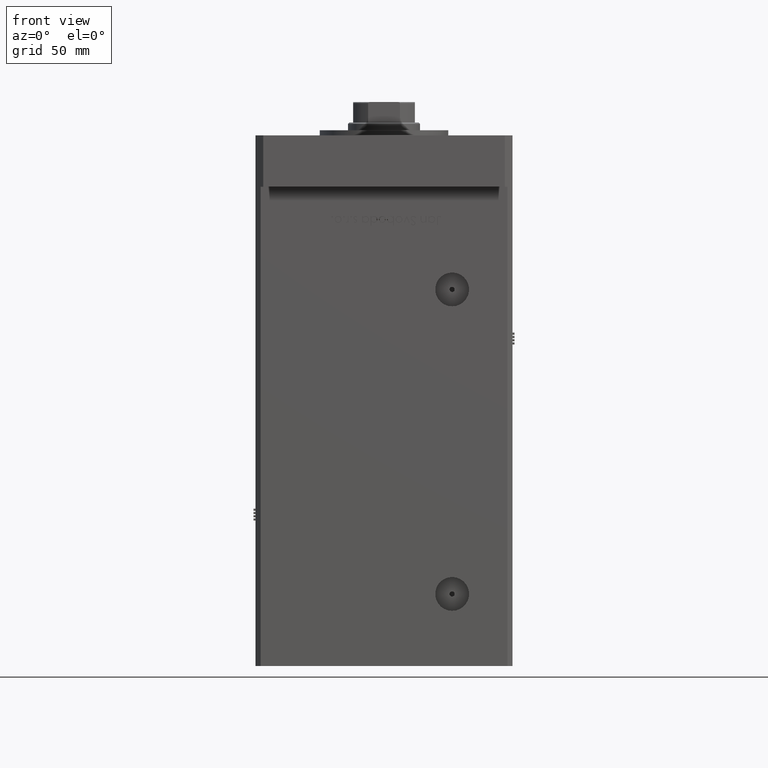
[diagram: clean part render]
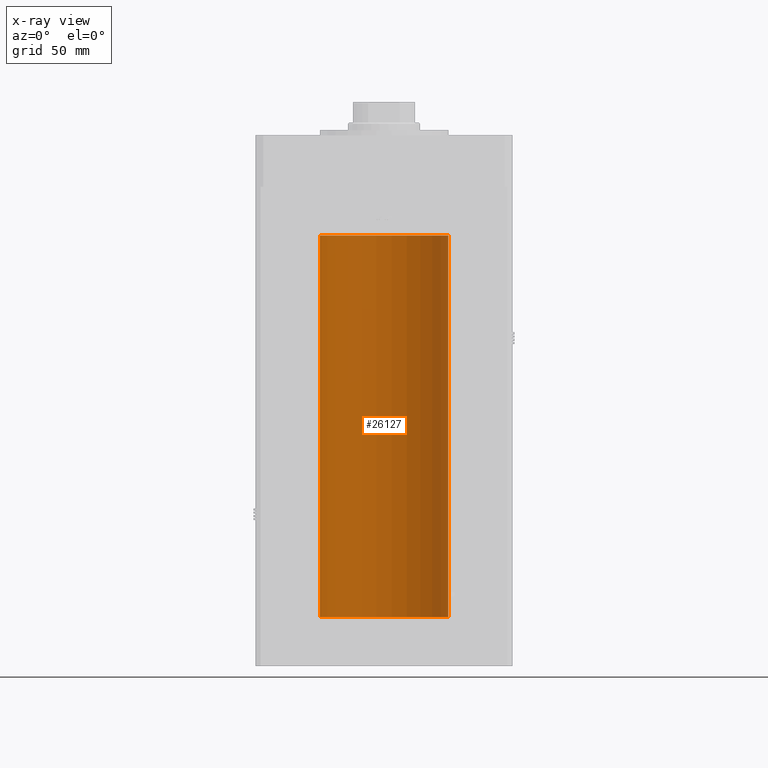
[diagram: x-ray — body ghosted, one internal face saturated and labeled with its STEP entity id]
A machine part, front view, then the same camera in x-ray: the body is ghosted and one INTERNAL B-rep face — a face not visible from any outside direction — is saturated and labeled: STEP entity #26127.
In plain terms, the highlighted cylindrical surface (partial cylindrical patch) has radius 25 mm, axis along (-0, -0, -1).
Its self-contained STEP definition (entity closure, byte-faithful):
#1627 = ORIENTED_EDGE ( 'NONE', *, *, #2624, .F. ) ;
#1793 = VECTOR ( 'NONE', #13716, 1000.000000000000000 ) ;
#2624 = EDGE_CURVE ( 'NONE', #6368, #3824, #47724, .T. ) ;
#3824 = VERTEX_POINT ( 'NONE', #8505 ) ;
#5655 = ORIENTED_EDGE ( 'NONE', *, *, #21397, .F. ) ;
#6368 = VERTEX_POINT ( 'NONE', #10781 ) ;
#7253 = DIRECTION ( 'NONE',  ( -0.000000000000000000, 0.000000000000000000, 1.000000000000000000 ) ) ;
#8505 = CARTESIAN_POINT ( 'NONE',  ( 25.00000000000000000, 3.061616997868383043E-15, 0.000000000000000000 ) ) ;
#9673 = CARTESIAN_POINT ( 'NONE',  ( -25.00000000000000000, 0.000000000000000000, 148.5000000000000000 ) ) ;
#10781 = CARTESIAN_POINT ( 'NONE',  ( 25.00000000000000000, 3.061616997868383043E-15, 148.5000000000000000 ) ) ;
#11577 = CARTESIAN_POINT ( 'NONE',  ( 0.000000000000000000, 0.000000000000000000, 148.5000000000000000 ) ) ;
#11856 = DIRECTION ( 'NONE',  ( -1.000000000000000000, 0.000000000000000000, 0.000000000000000000 ) ) ;
#12801 = AXIS2_PLACEMENT_3D ( 'NONE', #16101, #55269, #50681 ) ;
#13716 = DIRECTION ( 'NONE',  ( -0.000000000000000000, -0.000000000000000000, -1.000000000000000000 ) ) ;
#14283 = VERTEX_POINT ( 'NONE', #27600 ) ;
#15631 = DIRECTION ( 'NONE',  ( -0.000000000000000000, -0.000000000000000000, -1.000000000000000000 ) ) ;
#16101 = CARTESIAN_POINT ( 'NONE',  ( 0.000000000000000000, 0.000000000000000000, 0.000000000000000000 ) ) ;
#18623 = LINE ( 'NONE', #9673, #1793 ) ;
#20586 = CARTESIAN_POINT ( 'NONE',  ( -25.00000000000000000, 0.000000000000000000, 0.000000000000000000 ) ) ;
#21317 = EDGE_LOOP ( 'NONE', ( #1627, #44684, #32552, #5655 ) ) ;
#21397 = EDGE_CURVE ( 'NONE', #3824, #46928, #37615, .T. ) ;
#21992 = EDGE_CURVE ( 'NONE', #14283, #46928, #18623, .T. ) ;
#26127 = ADVANCED_FACE ( 'NONE', ( #29715 ), #51044, .F. ) ;
#27600 = CARTESIAN_POINT ( 'NONE',  ( -25.00000000000000000, 0.000000000000000000, 148.5000000000000000 ) ) ;
#29715 = FACE_OUTER_BOUND ( 'NONE', #21317, .T. ) ;
#32552 = ORIENTED_EDGE ( 'NONE', *, *, #21992, .T. ) ;
#34480 = CARTESIAN_POINT ( 'NONE',  ( 25.00000000000000000, 3.061616997868383043E-15, 148.5000000000000000 ) ) ;
#37615 = CIRCLE ( 'NONE', #12801, 25.00000000000000000 ) ;
#37736 = VECTOR ( 'NONE', #43981, 1000.000000000000000 ) ;
#43981 = DIRECTION ( 'NONE',  ( -0.000000000000000000, -0.000000000000000000, -1.000000000000000000 ) ) ;
#44684 = ORIENTED_EDGE ( 'NONE', *, *, #47252, .T. ) ;
#45082 = AXIS2_PLACEMENT_3D ( 'NONE', #11577, #15631, #11856 ) ;
#45184 = AXIS2_PLACEMENT_3D ( 'NONE', #50496, #7253, #46718 ) ;
#46718 = DIRECTION ( 'NONE',  ( 1.000000000000000000, 0.000000000000000000, 0.000000000000000000 ) ) ;
#46928 = VERTEX_POINT ( 'NONE', #20586 ) ;
#47252 = EDGE_CURVE ( 'NONE', #6368, #14283, #53522, .T. ) ;
#47724 = LINE ( 'NONE', #34480, #37736 ) ;
#50496 = CARTESIAN_POINT ( 'NONE',  ( 0.000000000000000000, 0.000000000000000000, 148.5000000000000000 ) ) ;
#50681 = DIRECTION ( 'NONE',  ( 1.000000000000000000, 0.000000000000000000, 0.000000000000000000 ) ) ;
#51044 = CYLINDRICAL_SURFACE ( 'NONE', #45082, 25.00000000000000000 ) ;
#53522 = CIRCLE ( 'NONE', #45184, 25.00000000000000000 ) ;
#55269 = DIRECTION ( 'NONE',  ( -0.000000000000000000, 0.000000000000000000, 1.000000000000000000 ) ) ;